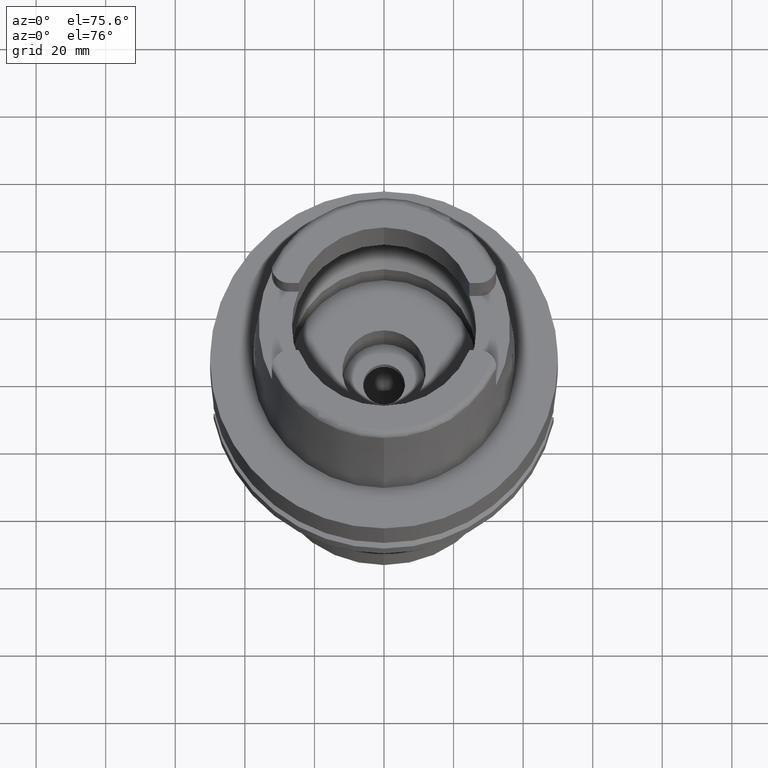
[diagram: clean part render]
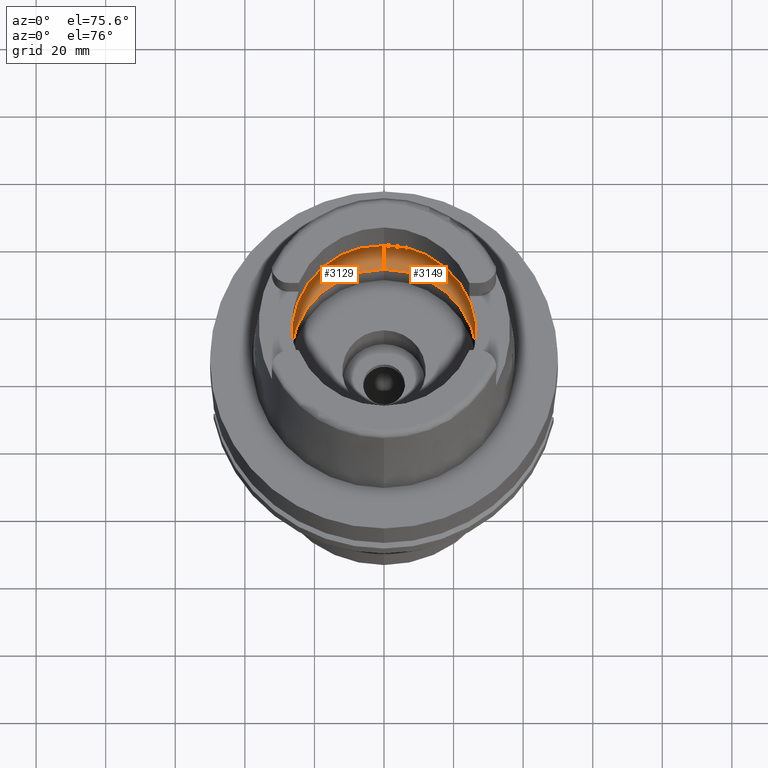
[diagram: same view with one multi-face feature highlighted, each face labeled with its STEP entity id]
A machine part, auxiliary view. The highlighted faces form ONE feature: a constant-radius fillet chain: 2 tangent blend faces with common blend radius 12 mm. The faces share edges in the B-rep.
Their STEP definitions:
[1] entity #3129 (Torus):
#588=CARTESIAN_POINT('',(-3.140918884336E1,-2.390158196044E0,9.496624327026E0));
#632=CARTESIAN_POINT('',(-3.140918884336E1,-2.390158196044E0,9.496624327026E0));
#633=CARTESIAN_POINT('',(-3.142817042433E1,-2.140720287608E0,9.388291533359E0));
#634=CARTESIAN_POINT('',(-3.145842591615E1,-1.626282554712E0,9.205228870666E0));
#635=CARTESIAN_POINT('',(-3.148416875896E1,-8.215746298374E-1,
9.037592635979E0));
#636=CARTESIAN_POINT('',(-3.148971910754E1,-2.740572723320E-1,9.E0));
#637=CARTESIAN_POINT('',(-3.148971910754E1,0.E0,9.E0));
#642=CARTESIAN_POINT('',(-3.148971910754E1,0.E0,9.E0));
#643=CARTESIAN_POINT('',(-3.148971910754E1,2.740565459395E-1,9.E0));
#644=CARTESIAN_POINT('',(-3.148416886187E1,8.215731729151E-1,9.037591997483E0));
#645=CARTESIAN_POINT('',(-3.145842545026E1,1.626293921866E0,9.205231818757E0));
#646=CARTESIAN_POINT('',(-3.142817007011E1,2.140724942431E0,9.388293554984E0));
#647=CARTESIAN_POINT('',(-3.140918884336E1,2.390158196044E0,9.496624327026E0));
#652=CARTESIAN_POINT('',(0.E0,1.340946904995E-14,9.496624327026E0));
#653=DIRECTION('',(0.E0,0.E0,-1.E0));
#654=DIRECTION('',(-9.971171061384E-1,7.587803796965E-2,0.E0));
#655=AXIS2_PLACEMENT_3D('',#652,#653,#654);
#660=CARTESIAN_POINT('',(0.E0,1.340946904995E-14,4.993178413035E-2));
#661=DIRECTION('',(0.E0,0.E0,1.E0));
#662=DIRECTION('',(0.E0,1.E0,0.E0));
#663=AXIS2_PLACEMENT_3D('',#660,#661,#662);
#668=CARTESIAN_POINT('',(0.E0,-1.95E1,9.496624327026E0));
#669=DIRECTION('',(-1.E0,0.E0,0.E0));
#670=DIRECTION('',(0.E0,-6.166666666667E-1,-7.872243785746E-1));
#671=AXIS2_PLACEMENT_3D('',#668,#669,#670);
#676=CARTESIAN_POINT('',(0.E0,1.340946904995E-14,9.496624327026E0));
#677=DIRECTION('',(0.E0,0.E0,-1.E0));
#678=DIRECTION('',(0.E0,-1.E0,0.E0));
#679=AXIS2_PLACEMENT_3D('',#676,#677,#678);
#710=CARTESIAN_POINT('',(0.E0,1.95E1,9.496624327026E0));
#711=DIRECTION('',(1.E0,0.E0,0.E0));
#712=DIRECTION('',(0.E0,6.166666666667E-1,-7.872243785746E-1));
#713=AXIS2_PLACEMENT_3D('',#710,#711,#712);
#2461=VERTEX_POINT('',#588);
#2462=CARTESIAN_POINT('',(0.E0,-3.15E1,9.496624327026E0));
#2463=VERTEX_POINT('',#2462);
#2464=CARTESIAN_POINT('',(0.E0,3.15E1,9.496624327026E0));
#2465=VERTEX_POINT('',#2464);
#2466=CARTESIAN_POINT('',(-3.140918884336E1,2.390158196044E0,9.496624327026E0));
#2467=VERTEX_POINT('',#2466);
#2471=CARTESIAN_POINT('',(-3.148971910754E1,0.E0,9.E0));
#2472=VERTEX_POINT('',#2471);
#2474=CARTESIAN_POINT('',(0.E0,-2.69E1,4.993178413035E-2));
#2475=VERTEX_POINT('',#2474);
#2476=CARTESIAN_POINT('',(0.E0,2.69E1,4.993178413035E-2));
#2477=VERTEX_POINT('',#2476);
#3112=CARTESIAN_POINT('',(0.E0,1.340946904995E-14,9.496624327026E0));
#3113=DIRECTION('',(0.E0,0.E0,-1.E0));
#3114=DIRECTION('',(0.E0,-1.E0,0.E0));
#3115=AXIS2_PLACEMENT_3D('',#3112,#3113,#3114);
#3116=TOROIDAL_SURFACE('',#3115,1.95E1,1.2E1);
#3117=ORIENTED_EDGE('',*,*,#3093,.T.);
#3118=ORIENTED_EDGE('',*,*,#3104,.T.);
#3119=ORIENTED_EDGE('',*,*,#3075,.T.);
#3121=ORIENTED_EDGE('',*,*,#3120,.F.);
#3123=ORIENTED_EDGE('',*,*,#3122,.T.);
#3125=ORIENTED_EDGE('',*,*,#3124,.T.);
#3126=ORIENTED_EDGE('',*,*,#3068,.T.);
#3127=EDGE_LOOP('',(#3117,#3118,#3119,#3121,#3123,#3125,#3126));
#3128=FACE_OUTER_BOUND('',#3127,.F.);
#638=B_SPLINE_CURVE_WITH_KNOTS('',3,(#632,#633,#634,#635,#636,#637),
.UNSPECIFIED.,.F.,.F.,(4,1,1,4),(0.E0,3.333333333333E-1,6.666666666667E-1,1.E0),
.UNSPECIFIED.);
#648=B_SPLINE_CURVE_WITH_KNOTS('',3,(#642,#643,#644,#645,#646,#647),
.UNSPECIFIED.,.F.,.F.,(4,1,1,4),(0.E0,3.333333333333E-1,6.666666666667E-1,1.E0),
.UNSPECIFIED.);
#656=CIRCLE('',#655,3.15E1);
#664=CIRCLE('',#663,2.69E1);
#672=CIRCLE('',#671,1.2E1);
#680=CIRCLE('',#679,3.15E1);
#714=CIRCLE('',#713,1.2E1);
#3068=EDGE_CURVE('',#2463,#2461,#680,.T.);
#3075=EDGE_CURVE('',#2467,#2465,#656,.T.);
#3093=EDGE_CURVE('',#2461,#2472,#638,.T.);
#3104=EDGE_CURVE('',#2472,#2467,#648,.T.);
#3120=EDGE_CURVE('',#2477,#2465,#714,.T.);
#3122=EDGE_CURVE('',#2477,#2475,#664,.T.);
#3124=EDGE_CURVE('',#2475,#2463,#672,.T.);
#3129=ADVANCED_FACE('',(#3128),#3116,.F.);
[2] entity #3149 (Torus):
#668=CARTESIAN_POINT('',(0.E0,-1.95E1,9.496624327026E0));
#669=DIRECTION('',(-1.E0,0.E0,0.E0));
#670=DIRECTION('',(0.E0,-6.166666666667E-1,-7.872243785746E-1));
#671=AXIS2_PLACEMENT_3D('',#668,#669,#670);
#684=CARTESIAN_POINT('',(3.148971910754E1,0.E0,9.E0));
#685=CARTESIAN_POINT('',(3.148971910754E1,-2.740577972478E-1,9.E0));
#686=CARTESIAN_POINT('',(3.148416873908E1,-8.215758563203E-1,9.037592770478E0));
#687=CARTESIAN_POINT('',(3.145842584810E1,-1.626284014638E0,9.205229300853E0));
#688=CARTESIAN_POINT('',(3.142817037895E1,-2.140720883960E0,9.388291792359E0));
#689=CARTESIAN_POINT('',(3.140918884336E1,-2.390158196044E0,9.496624327026E0));
#694=CARTESIAN_POINT('',(0.E0,1.340946904995E-14,9.496624327026E0));
#695=DIRECTION('',(0.E0,0.E0,-1.E0));
#696=DIRECTION('',(9.971171061384E-1,-7.587803796965E-2,0.E0));
#697=AXIS2_PLACEMENT_3D('',#694,#695,#696);
#702=CARTESIAN_POINT('',(0.E0,1.340946904995E-14,4.993178413035E-2));
#703=DIRECTION('',(0.E0,0.E0,1.E0));
#704=DIRECTION('',(0.E0,-1.E0,0.E0));
#705=AXIS2_PLACEMENT_3D('',#702,#703,#704);
#710=CARTESIAN_POINT('',(0.E0,1.95E1,9.496624327026E0));
#711=DIRECTION('',(1.E0,0.E0,0.E0));
#712=DIRECTION('',(0.E0,6.166666666667E-1,-7.872243785746E-1));
#713=AXIS2_PLACEMENT_3D('',#710,#711,#712);
#718=CARTESIAN_POINT('',(0.E0,1.340946904995E-14,9.496624327026E0));
#719=DIRECTION('',(0.E0,0.E0,-1.E0));
#720=DIRECTION('',(0.E0,1.E0,0.E0));
#721=AXIS2_PLACEMENT_3D('',#718,#719,#720);
#726=CARTESIAN_POINT('',(3.140918884336E1,2.390158196044E0,9.496624327026E0));
#727=CARTESIAN_POINT('',(3.142817011594E1,2.140724340245E0,9.388293293450E0));
#728=CARTESIAN_POINT('',(3.145842551910E1,1.626292447614E0,9.205231383659E0));
#729=CARTESIAN_POINT('',(3.148416888237E1,8.215719155565E-1,9.037591858779E0));
#730=CARTESIAN_POINT('',(3.148971910754E1,2.740560076334E-1,9.E0));
#731=CARTESIAN_POINT('',(3.148971910754E1,0.E0,9.E0));
#743=CARTESIAN_POINT('',(3.140918884336E1,-2.390158196044E0,9.496624327026E0));
#774=CARTESIAN_POINT('',(3.140918884336E1,2.390158196044E0,9.496624327026E0));
#2462=CARTESIAN_POINT('',(0.E0,-3.15E1,9.496624327026E0));
#2463=VERTEX_POINT('',#2462);
#2464=CARTESIAN_POINT('',(0.E0,3.15E1,9.496624327026E0));
#2465=VERTEX_POINT('',#2464);
#2468=VERTEX_POINT('',#743);
#2470=VERTEX_POINT('',#684);
#2473=VERTEX_POINT('',#774);
#2474=CARTESIAN_POINT('',(0.E0,-2.69E1,4.993178413035E-2));
#2475=VERTEX_POINT('',#2474);
#2476=CARTESIAN_POINT('',(0.E0,2.69E1,4.993178413035E-2));
#2477=VERTEX_POINT('',#2476);
#3130=CARTESIAN_POINT('',(0.E0,1.340946904995E-14,9.496624327026E0));
#3131=DIRECTION('',(0.E0,0.E0,-1.E0));
#3132=DIRECTION('',(0.E0,-1.E0,0.E0));
#3133=AXIS2_PLACEMENT_3D('',#3130,#3131,#3132);
#3134=TOROIDAL_SURFACE('',#3133,1.95E1,1.2E1);
#3136=ORIENTED_EDGE('',*,*,#3135,.T.);
#3138=ORIENTED_EDGE('',*,*,#3137,.T.);
#3139=ORIENTED_EDGE('',*,*,#3124,.F.);
#3141=ORIENTED_EDGE('',*,*,#3140,.T.);
#3142=ORIENTED_EDGE('',*,*,#3120,.T.);
#3144=ORIENTED_EDGE('',*,*,#3143,.T.);
#3146=ORIENTED_EDGE('',*,*,#3145,.T.);
#3147=EDGE_LOOP('',(#3136,#3138,#3139,#3141,#3142,#3144,#3146));
#3148=FACE_OUTER_BOUND('',#3147,.F.);
#672=CIRCLE('',#671,1.2E1);
#690=B_SPLINE_CURVE_WITH_KNOTS('',3,(#684,#685,#686,#687,#688,#689),
.UNSPECIFIED.,.F.,.F.,(4,1,1,4),(0.E0,3.333333333333E-1,6.666666666667E-1,1.E0),
.UNSPECIFIED.);
#698=CIRCLE('',#697,3.15E1);
#706=CIRCLE('',#705,2.69E1);
#714=CIRCLE('',#713,1.2E1);
#722=CIRCLE('',#721,3.15E1);
#732=B_SPLINE_CURVE_WITH_KNOTS('',3,(#726,#727,#728,#729,#730,#731),
.UNSPECIFIED.,.F.,.F.,(4,1,1,4),(0.E0,3.333333333333E-1,6.666666666667E-1,1.E0),
.UNSPECIFIED.);
#3120=EDGE_CURVE('',#2477,#2465,#714,.T.);
#3124=EDGE_CURVE('',#2475,#2463,#672,.T.);
#3135=EDGE_CURVE('',#2470,#2468,#690,.T.);
#3137=EDGE_CURVE('',#2468,#2463,#698,.T.);
#3140=EDGE_CURVE('',#2475,#2477,#706,.T.);
#3143=EDGE_CURVE('',#2465,#2473,#722,.T.);
#3145=EDGE_CURVE('',#2473,#2470,#732,.T.);
#3149=ADVANCED_FACE('',(#3148),#3134,.F.);